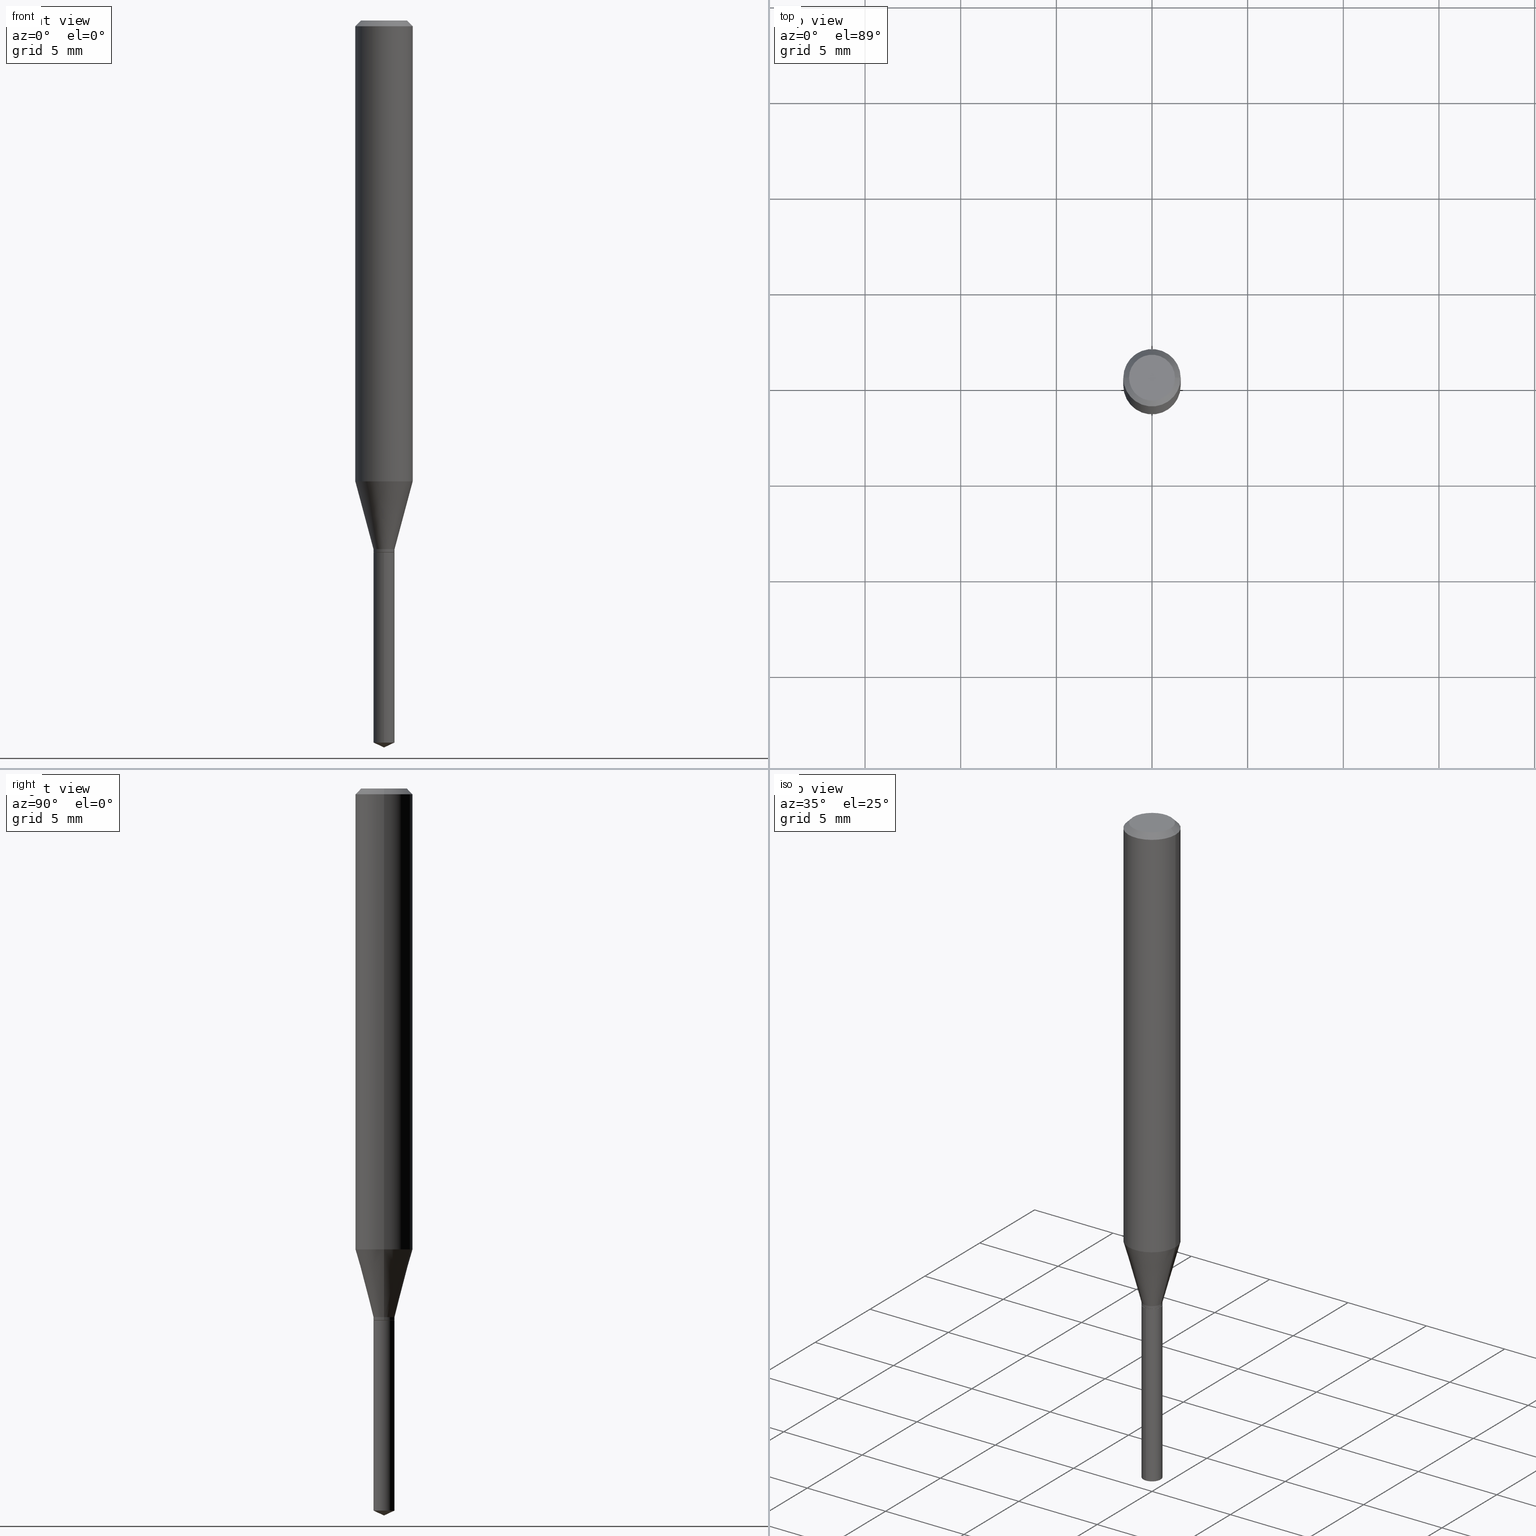
[diagram: canonical four-view strip — front | top / right | iso, engineering-drawing reading convention]
A machine part, canonical four-view strip (front | top / right | iso — engineering-drawing reading convention). The complete STEP part file that produces these views, byte-faithful:
ISO-10303-21;
HEADER;
FILE_DESCRIPTION (( 'STEP AP203' ),
    '1' );
FILE_NAME ('08150.STEP',
    '2024-04-24T13:11:09',
    ( '' ),
    ( '' ),
    'SwSTEP 2.0',
    'SolidWorks 2023',
    '' );
FILE_SCHEMA (( 'CONFIG_CONTROL_DESIGN' ));
ENDSEC;

DATA;
#1 = DIRECTION ( 'NONE',  ( -1.000000000000000000, 6.982962677686265922E-15, 0.000000000000000000 ) ) ;
#2 = CC_DESIGN_APPROVAL ( #64, ( #118 ) ) ;
#3 = CARTESIAN_POINT ( 'NONE',  ( 3.658567025404975087E-29, -5.223746797786701947E-15, -1.496099999999999985 ) ) ;
#4 = CARTESIAN_POINT ( 'NONE',  ( 3.633951633074026465E-29, -5.188393814565889832E-15, -1.486004439200944605 ) ) ;
#5 = FACE_OUTER_BOUND ( 'NONE', #470, .T. ) ;
#6 = EDGE_CURVE ( 'NONE', #31, #26, #181, .T. ) ;
#7 =( NAMED_UNIT ( * ) PLANE_ANGLE_UNIT ( ) SI_UNIT ( $, .RADIAN. ) );
#8 = DATE_AND_TIME ( #471, #299 ) ;
#9 = CLOSED_SHELL ( 'NONE', ( #61, #383, #300, #171, #136 ) ) ;
#10 = AXIS2_PLACEMENT_3D ( 'NONE', #374, #338, #1 ) ;
#11 = PERSON_AND_ORGANIZATION_ROLE ( 'creator' ) ;
#12 = DIRECTION ( 'NONE',  ( -6.982962677686265922E-15, -1.000000000000000000, 6.309117768277745325E-15 ) ) ;
#13 = EDGE_LOOP ( 'NONE', ( #478, #353, #334, #166 ) ) ;
#14 = APPROVAL_DATE_TIME ( #316, #64 ) ;
#15 = DIRECTION ( 'NONE',  ( 2.445402730703145099E-29, -3.491575962694140016E-15, -1.000000000000000000 ) ) ;
#16 = EDGE_CURVE ( 'NONE', #174, #217, #344, .T. ) ;
#17 = PERSON_AND_ORGANIZATION_ROLE ( 'creator' ) ;
#18 = FACE_OUTER_BOUND ( 'NONE', #331, .T. ) ;
#19 = CIRCLE ( 'NONE', #270, 0.02114999999999999172 ) ;
#20 = ORIENTED_EDGE ( 'NONE', *, *, #153, .T. ) ;
#21 = CYLINDRICAL_SURFACE ( 'NONE', #479, 0.02164999999999996788 ) ;
#22 = ADVANCED_FACE ( 'NONE', ( #5 ), #109, .T. ) ;
#23 = CARTESIAN_POINT ( 'NONE',  ( 8.265746106709734507E-48, -1.180129479067563789E-33, -3.380025165646692144E-19 ) ) ;
#24 = VERTEX_POINT ( 'NONE', #46 ) ;
#25 = CARTESIAN_POINT ( 'NONE',  ( 2.660670061129428738E-29, -3.798731696661342438E-15, -1.088000000000000078 ) ) ;
#26 = VERTEX_POINT ( 'NONE', #220 ) ;
#27 = VECTOR ( 'NONE', #144, 39.37007874015748854 ) ;
#28 = LOCAL_TIME ( 9, 11, 9.000000000000000000, #172 ) ;
#29 = CARTESIAN_POINT ( 'NONE',  ( -9.261705871415894043E-28, 1.322399773465276608E-13, 37.87397874015748300 ) ) ;
#30 = CARTESIAN_POINT ( 'NONE',  ( 1.538325022920883819E-16, 0.02164999999999617578, -1.094500000000000028 ) ) ;
#31 = VERTEX_POINT ( 'NONE', #3 ) ;
#32 = DIRECTION ( 'NONE',  ( -2.445402730703145379E-29, 3.491575962694140016E-15, 1.000000000000000000 ) ) ;
#33 = EDGE_LOOP ( 'NONE', ( #392, #323 ) ) ;
#34 = APPLICATION_CONTEXT ( 'configuration controlled 3d designs of mechanical parts and assemblies' ) ;
#35 = AXIS2_PLACEMENT_3D ( 'NONE', #23, #423, #162 ) ;
#36 = AXIS2_PLACEMENT_3D ( 'NONE', #401, #32, #332 ) ;
#37 = DIRECTION ( 'NONE',  ( 1.000000000000000000, -6.982962677686269077E-15, 0.000000000000000000 ) ) ;
#38 = ORIENTED_EDGE ( 'NONE', *, *, #100, .F. ) ;
#39 = PRODUCT ( '08150', '08150', '', ( #417 ) ) ;
#40 = CARTESIAN_POINT ( 'NONE',  ( -0.02164999999999996788, 1.538325022920614620E-16, -1.064949447040185625E-30 ) ) ;
#41 = CARTESIAN_POINT ( 'NONE',  ( 2.676565608369631794E-29, -3.821426325363822773E-15, -1.094499999999999806 ) ) ;
#42 = DIRECTION ( 'NONE',  ( 1.000000000000000000, -6.982962677686277755E-15, 0.000000000000000000 ) ) ;
#43 = VECTOR ( 'NONE', #233, 39.37007874015748143 ) ;
#44 = CIRCLE ( 'NONE', #347, 0.02114999999999999172 ) ;
#45 =( LENGTH_UNIT ( ) NAMED_UNIT ( * ) SI_UNIT ( $, .METRE. ) );
#46 = CARTESIAN_POINT ( 'NONE',  ( 0.02114999999999999172, -3.969115985996887497E-15, -1.094500000000000028 ) ) ;
#47 = SECURITY_CLASSIFICATION_LEVEL ( 'unclassified' ) ;
#48 = EDGE_CURVE ( 'NONE', #328, #473, #186, .T. ) ;
#49 = AXIS2_PLACEMENT_3D ( 'NONE', #465, #352, #425 ) ;
#50 = CALENDAR_DATE ( 2024, 24, 4 ) ;
#51 = LINE ( 'NONE', #312, #89 ) ;
#52 = VECTOR ( 'NONE', #182, 39.37007874015748143 ) ;
#53 = DIRECTION ( 'NONE',  ( -6.982962677686265922E-15, -1.000000000000000000, 6.309117768277745325E-15 ) ) ;
#54 = VERTEX_POINT ( 'NONE', #456 ) ;
#55 = CARTESIAN_POINT ( 'NONE',  ( 2.676565608369631794E-29, -3.821426325363822773E-15, -1.094499999999999806 ) ) ;
#56 = ORIENTED_EDGE ( 'NONE', *, *, #84, .F. ) ;
#57 = PERSON_AND_ORGANIZATION_ROLE ( 'classification_officer' ) ;
#58 = CARTESIAN_POINT ( 'NONE',  ( -0.02164999999999997135, -3.655373638385810145E-15, -1.088000000000000078 ) ) ;
#59 = AXIS2_PLACEMENT_3D ( 'NONE', #317, #463, #265 ) ;
#60 = CONICAL_SURFACE ( 'NONE', #10, 0.05905000000000000526, 0.7853981633974453924 ) ;
#61 = ADVANCED_FACE ( 'NONE', ( #222 ), #304, .T. ) ;
#62 = CARTESIAN_POINT ( 'NONE',  ( 0.02164999999999997135, -3.949912838633250169E-15, -1.088000000000000078 ) ) ;
#63 = EDGE_LOOP ( 'NONE', ( #247, #287, #466, #439 ) ) ;
#64 = APPROVAL ( #276, 'UNSPECIFIED' ) ;
#65 = FACE_OUTER_BOUND ( 'NONE', #72, .T. ) ;
#66 = ORIENTED_EDGE ( 'NONE', *, *, #390, .T. ) ;
#67 = EDGE_CURVE ( 'NONE', #94, #310, #51, .T. ) ;
#68 = DIRECTION ( 'NONE',  ( -2.445468806185136597E-29, 3.491481338843145583E-15, 1.000000000000000000 ) ) ;
#69 = AXIS2_PLACEMENT_3D ( 'NONE', #391, #175, #87 ) ;
#70 = ADVANCED_FACE ( 'NONE', ( #91 ), #123, .T. ) ;
#71 = DIRECTION ( 'NONE',  ( -6.982962677686266711E-15, -1.000000000000000000, 3.520397390770310692E-15 ) ) ;
#72 = EDGE_LOOP ( 'NONE', ( #449, #170 ) ) ;
#73 = DIRECTION ( 'NONE',  ( -2.445468806185136597E-29, 3.491481338843145583E-15, 1.000000000000000000 ) ) ;
#74 = DIRECTION ( 'NONE',  ( 1.000000000000000000, -6.982962677686277755E-15, 0.000000000000000000 ) ) ;
#75 = CONICAL_SURFACE ( 'NONE', #49, 0.05905000000000000526, 0.7853981633974453924 ) ;
#76 = APPROVAL_PERSON_ORGANIZATION ( #168, #454, #196 ) ;
#77 = PERSON_AND_ORGANIZATION_ROLE ( 'design_owner' ) ;
#78 = DIRECTION ( 'NONE',  ( -2.445468806185136597E-29, 3.491481338843145583E-15, 1.000000000000000000 ) ) ;
#79 = CC_DESIGN_PERSON_AND_ORGANIZATION_ASSIGNMENT ( #273, #86, ( #118 ) ) ;
#80 = LINE ( 'NONE', #453, #218 ) ;
#81 = DIRECTION ( 'NONE',  ( 1.000000000000000000, -6.982962677686265922E-15, 4.876176775795935793E-29 ) ) ;
#82 = CC_DESIGN_APPROVAL ( #454, ( #130 ) ) ;
#83 = CARTESIAN_POINT ( 'NONE',  ( -2.259394599611891373E-29, -1.089000228060149958E-14, -1.094500000000000028 ) ) ;
#84 = EDGE_CURVE ( 'NONE', #104, #363, #98, .T. ) ;
#85 = DIRECTION ( 'NONE',  ( -2.445402730703145379E-29, 3.491575962694140016E-15, 1.000000000000000000 ) ) ;
#86 = PERSON_AND_ORGANIZATION_ROLE ( 'design_supplier' ) ;
#87 = DIRECTION ( 'NONE',  ( -6.982962677686265922E-15, -1.000000000000000000, 6.309117768277745325E-15 ) ) ;
#88 = APPROVAL ( #464, 'UNSPECIFIED' ) ;
#89 = VECTOR ( 'NONE', #359, 39.37007874015748143 ) ;
#90 = CC_DESIGN_APPROVAL ( #88, ( #340 ) ) ;
#91 = FACE_OUTER_BOUND ( 'NONE', #13, .T. ) ;
#92 = ORIENTED_EDGE ( 'NONE', *, *, #67, .F. ) ;
#93 = CARTESIAN_POINT ( 'NONE',  ( 0.02114999999999999172, -3.969115985996887497E-15, -1.094500000000000028 ) ) ;
#94 = VERTEX_POINT ( 'NONE', #197 ) ;
#95 = DATE_AND_TIME ( #235, #315 ) ;
#96 = LINE ( 'NONE', #93, #376 ) ;
#97 = PERSON_AND_ORGANIZATION ( #258, #378 ) ;
#98 = LINE ( 'NONE', #122, #254 ) ;
#99 = AXIS2_PLACEMENT_3D ( 'NONE', #41, #192, #155 ) ;
#100 = EDGE_CURVE ( 'NONE', #104, #189, #279, .T. ) ;
#101 = AXIS2_PLACEMENT_3D ( 'NONE', #113, #477, #141 ) ;
#102 = EDGE_LOOP ( 'NONE', ( #115, #163, #234, #475 ) ) ;
#103 = CARTESIAN_POINT ( 'NONE',  ( 2.675342873966538993E-29, -3.819680584694400481E-15, -1.093999999999999861 ) ) ;
#104 = VERTEX_POINT ( 'NONE', #62 ) ;
#105 = ADVANCED_FACE ( 'NONE', ( #431 ), #75, .T. ) ;
#106 = DIRECTION ( 'NONE',  ( 1.000000000000000000, -6.982962677686269077E-15, 0.000000000000000000 ) ) ;
#107 = ADVANCED_FACE ( 'NONE', ( #239 ), #434, .T. ) ;
#108 = CARTESIAN_POINT ( 'NONE',  ( 2.888098660104664642E-31, -4.123439461173780879E-17, -0.01181000000000007565 ) ) ;
#109 = CONICAL_SURFACE ( 'NONE', #364, 0.02164999999999997135, 0.2617993877991497964 ) ;
#110 = AXIS2_PLACEMENT_3D ( 'NONE', #286, #368, #438 ) ;
#111 = DIRECTION ( 'NONE',  ( -2.445468806185136597E-29, 3.491481338843145583E-15, 1.000000000000000000 ) ) ;
#112 = EDGE_LOOP ( 'NONE', ( #400, #297, #129 ) ) ;
#113 = CARTESIAN_POINT ( 'NONE',  ( 2.319334703774938561E-29, -3.311395269602319629E-15, -0.9484212997969236891 ) ) ;
#114 = EDGE_CURVE ( 'NONE', #293, #94, #288, .T. ) ;
#115 = ORIENTED_EDGE ( 'NONE', *, *, #429, .F. ) ;
#116 =( CONVERSION_BASED_UNIT ( 'INCH', #335 ) LENGTH_UNIT ( ) NAMED_UNIT ( #177 ) );
#117 = AXIS2_PLACEMENT_3D ( 'NONE', #149, #219, #263 ) ;
#118 = PRODUCT_DEFINITION_FORMATION_WITH_SPECIFIED_SOURCE ( 'ANY', '', #39, .NOT_KNOWN. ) ;
#119 = DIRECTION ( 'NONE',  ( 1.000000000000000000, -6.982962677686268288E-15, 0.000000000000000000 ) ) ;
#120 = AXIS2_PLACEMENT_3D ( 'NONE', #55, #350, #53 ) ;
#121 =( NAMED_UNIT ( * ) SI_UNIT ( $, .STERADIAN. ) SOLID_ANGLE_UNIT ( ) );
#122 = CARTESIAN_POINT ( 'NONE',  ( 0.02164999999999997135, -3.949912838633250169E-15, -1.088000000000000078 ) ) ;
#123 = CYLINDRICAL_SURFACE ( 'NONE', #244, 0.05905000000000005383 ) ;
#124 = APPROVAL_ROLE ( '' ) ;
#125 = CARTESIAN_POINT ( 'NONE',  ( 2.676565608369632355E-29, -3.821426325363822773E-15, -1.094500000000000028 ) ) ;
#126 = ORIENTED_EDGE ( 'NONE', *, *, #48, .F. ) ;
#127 = DATE_AND_TIME ( #50, #396 ) ;
#128 = DIRECTION ( 'NONE',  ( -2.445468806185136597E-29, 3.491481338843145583E-15, 1.000000000000000000 ) ) ;
#129 = ORIENTED_EDGE ( 'NONE', *, *, #303, .F. ) ;
#130 = PRODUCT_DEFINITION ( 'UNKNOWN', '', #118, #151 ) ;
#131 = APPLICATION_PROTOCOL_DEFINITION ( 'international standard', 'config_control_design', 1994, #194 ) ;
#132 = CARTESIAN_POINT ( 'NONE',  ( 1.538325022920979468E-16, 0.02164999999999480187, -1.486004439200944605 ) ) ;
#133 = ORIENTED_EDGE ( 'NONE', *, *, #459, .T. ) ;
#134 = FACE_OUTER_BOUND ( 'NONE', #102, .T. ) ;
#135 = AXIS2_PLACEMENT_3D ( 'NONE', #25, #73, #74 ) ;
#136 = ADVANCED_FACE ( 'NONE', ( #18 ), #231, .F. ) ;
#137 = CONICAL_SURFACE ( 'NONE', #36, 84.42940631927777417, 1.134464013796331550 ) ;
#138 = ORIENTED_EDGE ( 'NONE', *, *, #476, .F. ) ;
#139 = DIRECTION ( 'NONE',  ( 1.000000000000000000, -6.982962677686266711E-15, 4.876176775795935793E-29 ) ) ;
#140 = ORIENTED_EDGE ( 'NONE', *, *, #487, .F. ) ;
#141 = DIRECTION ( 'NONE',  ( 1.000000000000000000, -6.982962677686268288E-15, 0.000000000000000000 ) ) ;
#142 = VERTEX_POINT ( 'NONE', #357 ) ;
#143 = CARTESIAN_POINT ( 'NONE',  ( 2.676565608369632355E-29, -3.821426325363822773E-15, -1.094500000000000028 ) ) ;
#144 = DIRECTION ( 'NONE',  ( -6.328713451373419077E-15, -0.9063077870366557098, 0.4226182617406868403 ) ) ;
#145 = AXIS2_PLACEMENT_3D ( 'NONE', #381, #188, #119 ) ;
#146 = EDGE_CURVE ( 'NONE', #174, #24, #19, .T. ) ;
#147 = CARTESIAN_POINT ( 'NONE',  ( 0.05905000000000010241, -3.723739215719694549E-15, -0.9484212997969236891 ) ) ;
#148 = EDGE_CURVE ( 'NONE', #54, #104, #227, .T. ) ;
#149 = CARTESIAN_POINT ( 'NONE',  ( 8.265746106709734507E-48, -1.180129479067563789E-33, -3.380025165646692144E-19 ) ) ;
#150 = VERTEX_POINT ( 'NONE', #428 ) ;
#151 = DESIGN_CONTEXT ( 'detailed design', #194, 'design' ) ;
#152 = DIRECTION ( 'NONE',  ( -0.2588190451025211281, 5.211531920934548675E-15, 0.9659258262890682012 ) ) ;
#153 = EDGE_CURVE ( 'NONE', #24, #54, #96, .T. ) ;
#154 = DIRECTION ( 'NONE',  ( 1.000000000000000000, -6.982962677686278543E-15, 0.000000000000000000 ) ) ;
#155 = DIRECTION ( 'NONE',  ( -6.982962677686265922E-15, -1.000000000000000000, 6.309117768277745325E-15 ) ) ;
#156 = DIRECTION ( 'NONE',  ( 1.000000000000000000, -6.982962677686277755E-15, 0.000000000000000000 ) ) ;
#157 = CIRCLE ( 'NONE', #436, 0.05905000000000000526 ) ;
#158 = CONICAL_SURFACE ( 'NONE', #262, 0.02114999999999999172, 0.7853981633972519916 ) ;
#159 = EDGE_CURVE ( 'NONE', #473, #328, #346, .T. ) ;
#160 = DATE_TIME_ROLE ( 'classification_date' ) ;
#161 = CC_DESIGN_PERSON_AND_ORGANIZATION_ASSIGNMENT ( #198, #17, ( #130 ) ) ;
#162 = DIRECTION ( 'NONE',  ( 1.000000000000000000, -6.982962677686266711E-15, 4.876185090822587894E-29 ) ) ;
#163 = ORIENTED_EDGE ( 'NONE', *, *, #476, .T. ) ;
#164 = APPROVAL_DATE_TIME ( #351, #454 ) ;
#165 = DIRECTION ( 'NONE',  ( 6.982962677686265922E-15, 1.000000000000000000, -3.491575962694140016E-15 ) ) ;
#166 = ORIENTED_EDGE ( 'NONE', *, *, #395, .F. ) ;
#167 = VECTOR ( 'NONE', #342, 39.37007874015748143 ) ;
#168 = PERSON_AND_ORGANIZATION ( #258, #378 ) ;
#169 = CARTESIAN_POINT ( 'NONE',  ( 0.02164999999999996788, -1.511811419719074599E-16, 1.055692271959818387E-30 ) ) ;
#170 = ORIENTED_EDGE ( 'NONE', *, *, #408, .T. ) ;
#171 = ADVANCED_FACE ( 'NONE', ( #384 ), #468, .T. ) ;
#172 = COORDINATED_UNIVERSAL_TIME_OFFSET ( 5, 0, .BEHIND. ) ;
#173 = CARTESIAN_POINT ( 'NONE',  ( 0.000000000000000000, 0.000000000000000000, 0.000000000000000000 ) ) ;
#174 = VERTEX_POINT ( 'NONE', #278 ) ;
#175 = DIRECTION ( 'NONE',  ( -2.445402730703145379E-29, 3.491575962694140016E-15, 1.000000000000000000 ) ) ;
#176 = EDGE_LOOP ( 'NONE', ( #284, #269, #20, #275 ) ) ;
#177 = DIMENSIONAL_EXPONENTS ( 1.000000000000000000, 0.000000000000000000, 0.000000000000000000, 0.000000000000000000, 0.000000000000000000, 0.000000000000000000, 0.000000000000000000 ) ;
#178 = CC_DESIGN_PERSON_AND_ORGANIZATION_ASSIGNMENT ( #420, #77, ( #39 ) ) ;
#179 = FACE_OUTER_BOUND ( 'NONE', #176, .T. ) ;
#180 = DIRECTION ( 'NONE',  ( -2.445468806185136597E-29, 3.491481338843145583E-15, 1.000000000000000000 ) ) ;
#181 = LINE ( 'NONE', #486, #27 ) ;
#182 = DIRECTION ( 'NONE',  ( -0.7071067811865454633, 2.468850131082235367E-15, -0.7071067811865495711 ) ) ;
#183 = ORIENTED_EDGE ( 'NONE', *, *, #395, .T. ) ;
#184 = DIRECTION ( 'NONE',  ( 1.000000000000000000, -6.982962677686268288E-15, 0.000000000000000000 ) ) ;
#185 = ORIENTED_EDGE ( 'NONE', *, *, #387, .T. ) ;
#186 = CIRCLE ( 'NONE', #99, 0.02164999999999999564 ) ;
#187 = EDGE_CURVE ( 'NONE', #310, #150, #157, .T. ) ;
#188 = DIRECTION ( 'NONE',  ( -2.445468806185136597E-29, 3.491481338843145583E-15, 1.000000000000000000 ) ) ;
#189 = VERTEX_POINT ( 'NONE', #58 ) ;
#190 = ADVANCED_FACE ( 'NONE', ( #203 ), #21, .T. ) ;
#191 = CARTESIAN_POINT ( 'NONE',  ( -1.511811419718808852E-16, -0.02165000000000381897, -1.094499999999999806 ) ) ;
#192 = DIRECTION ( 'NONE',  ( -2.445402730703145379E-29, 3.491575962694140016E-15, 1.000000000000000000 ) ) ;
#193 = VECTOR ( 'NONE', #85, 39.37007874015748143 ) ;
#194 = APPLICATION_CONTEXT ( 'configuration controlled 3d designs of mechanical parts and assemblies' ) ;
#195 = PERSON_AND_ORGANIZATION ( #258, #378 ) ;
#196 = APPROVAL_ROLE ( '' ) ;
#197 = CARTESIAN_POINT ( 'NONE',  ( 0.04724000000000000421, -3.852183633974369838E-16, -3.380025165621689721E-19 ) ) ;
#198 = PERSON_AND_ORGANIZATION ( #258, #378 ) ;
#199 = DIRECTION ( 'NONE',  ( 0.2588190451025211281, 1.565188264969623940E-15, 0.9659258262890682012 ) ) ;
#200 = CARTESIAN_POINT ( 'NONE',  ( 2.676565608369631794E-29, -3.821426325363822773E-15, -1.094499999999999806 ) ) ;
#201 = COORDINATED_UNIVERSAL_TIME_OFFSET ( 5, 0, .BEHIND. ) ;
#202 = CIRCLE ( 'NONE', #404, 0.02164999999999999564 ) ;
#203 = FACE_OUTER_BOUND ( 'NONE', #482, .T. ) ;
#204 = EDGE_LOOP ( 'NONE', ( #92, #251, #185, #343 ) ) ;
#205 = DIRECTION ( 'NONE',  ( -2.445468806185136597E-29, 3.491481338843145583E-15, 1.000000000000000000 ) ) ;
#206 = VERTEX_POINT ( 'NONE', #132 ) ;
#207 = FACE_OUTER_BOUND ( 'NONE', #214, .T. ) ;
#208 = ORIENTED_EDGE ( 'NONE', *, *, #6, .F. ) ;
#209 = CC_DESIGN_PERSON_AND_ORGANIZATION_ASSIGNMENT ( #195, #11, ( #118 ) ) ;
#210 = FACE_OUTER_BOUND ( 'NONE', #313, .T. ) ;
#211 = AXIS2_PLACEMENT_3D ( 'NONE', #301, #448, #42 ) ;
#212 = ORIENTED_EDGE ( 'NONE', *, *, #266, .F. ) ;
#213 = LINE ( 'NONE', #241, #52 ) ;
#214 = EDGE_LOOP ( 'NONE', ( #212, #321, #183, #402 ) ) ;
#215 = DIRECTION ( 'NONE',  ( -2.445402730703145379E-29, 3.491575962694140016E-15, 1.000000000000000000 ) ) ;
#216 = DIRECTION ( 'NONE',  ( 6.439704144417076107E-15, 0.9063077870366588185, 0.4226182617406806230 ) ) ;
#217 = VERTEX_POINT ( 'NONE', #249 ) ;
#218 = VECTOR ( 'NONE', #257, 39.37007874015748143 ) ;
#219 = DIRECTION ( 'NONE',  ( -2.445468806185136597E-29, 3.491481338843145583E-15, 1.000000000000000000 ) ) ;
#220 = CARTESIAN_POINT ( 'NONE',  ( -1.511811419718712709E-16, -0.02165000000000518246, -1.486004439200944605 ) ) ;
#221 = FACE_OUTER_BOUND ( 'NONE', #204, .T. ) ;
#222 = FACE_OUTER_BOUND ( 'NONE', #406, .T. ) ;
#223 = DIRECTION ( 'NONE',  ( -2.445402730703145379E-29, 3.491575962694140016E-15, 1.000000000000000000 ) ) ;
#224 = ADVANCED_FACE ( 'NONE', ( #134 ), #253, .T. ) ;
#225 = LINE ( 'NONE', #457, #413 ) ;
#226 = CC_DESIGN_DATE_AND_TIME_ASSIGNMENT ( #8, #160, ( #340 ) ) ;
#227 = LINE ( 'NONE', #169, #43 ) ;
#228 = AXIS2_PLACEMENT_3D ( 'NONE', #143, #180, #362 ) ;
#229 = AXIS2_PLACEMENT_3D ( 'NONE', #108, #68, #184 ) ;
#230 = APPROVAL_STATUS ( 'not_yet_approved' ) ;
#231 = PLANE ( 'NONE',  #451 ) ;
#232 = EDGE_LOOP ( 'NONE', ( #411, #379, #367, #126 ) ) ;
#233 = DIRECTION ( 'NONE',  ( -2.445468806185136877E-29, 3.491481338843145188E-15, 1.000000000000000000 ) ) ;
#234 = ORIENTED_EDGE ( 'NONE', *, *, #84, .T. ) ;
#235 = CALENDAR_DATE ( 2024, 24, 4 ) ;
#236 = CARTESIAN_POINT ( 'NONE',  ( 0.000000000000000000, 0.000000000000000000, 0.000000000000000000 ) ) ;
#237 = AXIS2_PLACEMENT_3D ( 'NONE', #458, #261, #12 ) ;
#238 = AXIS2_PLACEMENT_3D ( 'NONE', #29, #366, #71 ) ;
#239 = FACE_OUTER_BOUND ( 'NONE', #389, .T. ) ;
#240 = ORIENTED_EDGE ( 'NONE', *, *, #256, .T. ) ;
#241 = CARTESIAN_POINT ( 'NONE',  ( -0.05905000000000000526, 3.711095515056362547E-16, -0.01181000000000007565 ) ) ;
#242 = ADVANCED_FACE ( 'NONE', ( #65 ), #399, .F. ) ;
#243 = DIRECTION ( 'NONE',  ( 2.438088387897960049E-29, -3.491481338843145188E-15, -1.000000000000000000 ) ) ;
#244 = AXIS2_PLACEMENT_3D ( 'NONE', #236, #309, #268 ) ;
#245 = DIRECTION ( 'NONE',  ( -2.445468806185136597E-29, 3.491481338843145583E-15, 1.000000000000000000 ) ) ;
#246 = CIRCLE ( 'NONE', #437, 0.02164999999999996788 ) ;
#247 = ORIENTED_EDGE ( 'NONE', *, *, #308, .T. ) ;
#248 = ADVANCED_FACE ( 'NONE', ( #179 ), #339, .T. ) ;
#249 = CARTESIAN_POINT ( 'NONE',  ( -0.02164999999999996788, -3.655373638385810145E-15, -1.093999999999999861 ) ) ;
#250 = DIRECTION ( 'NONE',  ( 1.000000000000000000, -6.982962677686278543E-15, 0.000000000000000000 ) ) ;
#251 = ORIENTED_EDGE ( 'NONE', *, *, #114, .F. ) ;
#252 = FACE_OUTER_BOUND ( 'NONE', #33, .T. ) ;
#253 = CONICAL_SURFACE ( 'NONE', #135, 0.02164999999999997135, 0.2617993877991497964 ) ;
#254 = VECTOR ( 'NONE', #199, 39.37007874015748143 ) ;
#255 = AXIS2_PLACEMENT_3D ( 'NONE', #83, #460, #81 ) ;
#256 = EDGE_CURVE ( 'NONE', #206, #328, #483, .T. ) ;
#257 = DIRECTION ( 'NONE',  ( -2.445468806185136877E-29, 3.491481338843145188E-15, 1.000000000000000000 ) ) ;
#258 = PERSON ( 'UNSPECIFIED', 'UNSPECIFIED', 'UNSPECIFIED', ('UNSPECIFIED'), ('UNSPECIFIED'), ('UNSPECIFIED') ) ;
#259 = CARTESIAN_POINT ( 'NONE',  ( -1.511811419718808852E-16, -0.02165000000000381897, -1.094499999999999806 ) ) ;
#260 = PLANE ( 'NONE',  #255 ) ;
#261 = DIRECTION ( 'NONE',  ( -2.445402730703145379E-29, 3.491575962694140016E-15, 1.000000000000000000 ) ) ;
#262 = AXIS2_PLACEMENT_3D ( 'NONE', #292, #245, #37 ) ;
#263 = DIRECTION ( 'NONE',  ( 1.000000000000000000, -6.982962677686266711E-15, 4.876185090822587894E-29 ) ) ;
#264 = APPROVAL_ROLE ( '' ) ;
#265 = DIRECTION ( 'NONE',  ( 1.000000000000000000, -6.982962677686267499E-15, 4.876176775795935232E-29 ) ) ;
#266 = EDGE_CURVE ( 'NONE', #142, #150, #329, .T. ) ;
#267 = COORDINATED_UNIVERSAL_TIME_OFFSET ( 5, 0, .BEHIND. ) ;
#268 = DIRECTION ( 'NONE',  ( 1.000000000000000000, -6.982962677686266711E-15, 4.876176775795935793E-29 ) ) ;
#269 = ORIENTED_EDGE ( 'NONE', *, *, #146, .T. ) ;
#270 = AXIS2_PLACEMENT_3D ( 'NONE', #125, #205, #388 ) ;
#271 = VECTOR ( 'NONE', #380, 39.37007874015748143 ) ;
#272 = DIRECTION ( 'NONE',  ( -2.445468806185136597E-29, 3.491481338843145583E-15, 1.000000000000000000 ) ) ;
#273 = PERSON_AND_ORGANIZATION ( #258, #378 ) ;
#274 = DIRECTION ( 'NONE',  ( 1.000000000000000000, -6.982962677686268288E-15, 0.000000000000000000 ) ) ;
#275 = ORIENTED_EDGE ( 'NONE', *, *, #337, .F. ) ;
#276 = APPROVAL_STATUS ( 'not_yet_approved' ) ;
#277 = ADVANCED_FACE ( 'NONE', ( #207 ), #369, .T. ) ;
#278 = CARTESIAN_POINT ( 'NONE',  ( -0.02114999999999999172, -3.668497309576451157E-15, -1.094500000000000028 ) ) ;
#279 = CIRCLE ( 'NONE', #419, 0.02164999999999997135 ) ;
#280 = CIRCLE ( 'NONE', #145, 0.05905000000000010241 ) ;
#281 = LINE ( 'NONE', #410, #403 ) ;
#282 = ORIENTED_EDGE ( 'NONE', *, *, #337, .T. ) ;
#283 = FACE_OUTER_BOUND ( 'NONE', #112, .T. ) ;
#284 = ORIENTED_EDGE ( 'NONE', *, *, #16, .F. ) ;
#285 = MANIFOLD_SOLID_BREP ( 'Body-Move/Copy2[1]', #9 ) ;
#286 = CARTESIAN_POINT ( 'NONE',  ( 3.633951633074026465E-29, -5.188393814565889832E-15, -1.486004439200944605 ) ) ;
#287 = ORIENTED_EDGE ( 'NONE', *, *, #16, .T. ) ;
#288 = CIRCLE ( 'NONE', #35, 0.04724000000000000421 ) ;
#289 = DIRECTION ( 'NONE',  ( -2.445468806185136597E-29, 3.491481338843145583E-15, 1.000000000000000000 ) ) ;
#290 = ADVANCED_BREP_SHAPE_REPRESENTATION ( '08150', ( #285, #294, #480 ), #443 ) ;
#291 = ORIENTED_EDGE ( 'NONE', *, *, #408, .F. ) ;
#292 = CARTESIAN_POINT ( 'NONE',  ( 2.676565608369632355E-29, -3.821426325363822773E-15, -1.094500000000000028 ) ) ;
#293 = VERTEX_POINT ( 'NONE', #481 ) ;
#294 = MANIFOLD_SOLID_BREP ( 'Body-Move/Copy2[2]', #306 ) ;
#295 = UNCERTAINTY_MEASURE_WITH_UNIT (LENGTH_MEASURE( 1.000000000000000082E-05 ), #116, 'distance_accuracy_value', 'NONE');
#296 = EDGE_CURVE ( 'NONE', #31, #206, #281, .T. ) ;
#297 = ORIENTED_EDGE ( 'NONE', *, *, #6, .T. ) ;
#298 = LINE ( 'NONE', #40, #271 ) ;
#299 = LOCAL_TIME ( 9, 11, 9.000000000000000000, #201 ) ;
#300 = ADVANCED_FACE ( 'NONE', ( #283 ), #137, .T. ) ;
#301 = CARTESIAN_POINT ( 'NONE',  ( 2.660670061129428738E-29, -3.798731696661342438E-15, -1.088000000000000078 ) ) ;
#302 = CARTESIAN_POINT ( 'NONE',  ( 2.660670061129428738E-29, -3.798731696661342438E-15, -1.088000000000000078 ) ) ;
#303 = EDGE_CURVE ( 'NONE', #206, #26, #426, .T. ) ;
#304 = CYLINDRICAL_SURFACE ( 'NONE', #237, 0.02164999999999999564 ) ;
#305 = CARTESIAN_POINT ( 'NONE',  ( 0.000000000000000000, 0.000000000000000000, 0.000000000000000000 ) ) ;
#306 = CLOSED_SHELL ( 'NONE', ( #319, #105, #70, #22, #107, #190, #224, #277, #414, #242, #412, #248 ) ) ;
#307 = CIRCLE ( 'NONE', #372, 0.02164999999999996788 ) ;
#308 = EDGE_CURVE ( 'NONE', #24, #174, #44, .T. ) ;
#309 = DIRECTION ( 'NONE',  ( -2.445468806185136597E-29, 3.491481338843145583E-15, 1.000000000000000000 ) ) ;
#310 = VERTEX_POINT ( 'NONE', #407 ) ;
#311 = CALENDAR_DATE ( 2024, 24, 4 ) ;
#312 = CARTESIAN_POINT ( 'NONE',  ( 0.05905000000000000526, -4.463468013801467941E-16, -0.01181000000000007565 ) ) ;
#313 = EDGE_LOOP ( 'NONE', ( #208, #484, #398 ) ) ;
#314 = AXIS2_PLACEMENT_3D ( 'NONE', #489, #330, #139 ) ;
#315 = LOCAL_TIME ( 9, 11, 9.000000000000000000, #430 ) ;
#316 = DATE_AND_TIME ( #467, #28 ) ;
#317 = CARTESIAN_POINT ( 'NONE',  ( 0.000000000000000000, 0.000000000000000000, 0.000000000000000000 ) ) ;
#318 = ORIENTED_EDGE ( 'NONE', *, *, #187, .T. ) ;
#319 = ADVANCED_FACE ( 'NONE', ( #371 ), #158, .T. ) ;
#320 = DIRECTION ( 'NONE',  ( -2.445468806185136597E-29, 3.491481338843145583E-15, 1.000000000000000000 ) ) ;
#321 = ORIENTED_EDGE ( 'NONE', *, *, #377, .T. ) ;
#322 = CARTESIAN_POINT ( 'NONE',  ( 1.538325022920980454E-16, 0.02164999999999617578, -1.094500000000000028 ) ) ;
#323 = ORIENTED_EDGE ( 'NONE', *, *, #146, .F. ) ;
#324 = AXIS2_PLACEMENT_3D ( 'NONE', #405, #243, #442 ) ;
#325 = APPROVAL_PERSON_ORGANIZATION ( #97, #64, #264 ) ;
#326 = CIRCLE ( 'NONE', #117, 0.04724000000000000421 ) ;
#327 = CARTESIAN_POINT ( 'NONE',  ( -0.05905000000000005383, 4.195754854663395423E-16, -2.904631170795524694E-30 ) ) ;
#328 = VERTEX_POINT ( 'NONE', #322 ) ;
#329 = LINE ( 'NONE', #327, #355 ) ;
#330 = DIRECTION ( 'NONE',  ( -2.445468806185136597E-29, 3.491481338843145583E-15, 1.000000000000000000 ) ) ;
#331 = EDGE_LOOP ( 'NONE', ( #445, #435 ) ) ;
#332 = DIRECTION ( 'NONE',  ( -6.982962677686266711E-15, -1.000000000000000000, 3.520397390770310692E-15 ) ) ;
#333 = CIRCLE ( 'NONE', #211, 0.02164999999999997135 ) ;
#334 = ORIENTED_EDGE ( 'NONE', *, *, #187, .F. ) ;
#335 = LENGTH_MEASURE_WITH_UNIT ( LENGTH_MEASURE( 0.02539999999999999897 ), #45 );
#336 = ORIENTED_EDGE ( 'NONE', *, *, #459, .F. ) ;
#337 = EDGE_CURVE ( 'NONE', #217, #54, #307, .T. ) ;
#338 = DIRECTION ( 'NONE',  ( 2.445468806185136597E-29, -3.491481338843145583E-15, -1.000000000000000000 ) ) ;
#339 = CONICAL_SURFACE ( 'NONE', #228, 0.02114999999999999172, 0.7853981633972519916 ) ;
#340 = SECURITY_CLASSIFICATION ( '', '', #47 ) ;
#341 = DIRECTION ( 'NONE',  ( 1.000000000000000000, 0.000000000000000000, 0.000000000000000000 ) ) ;
#342 = DIRECTION ( 'NONE',  ( -0.7071067811864086838, 7.493145998869852445E-15, 0.7071067811866863506 ) ) ;
#343 = ORIENTED_EDGE ( 'NONE', *, *, #361, .T. ) ;
#344 = LINE ( 'NONE', #382, #167 ) ;
#345 = PERSON_AND_ORGANIZATION ( #258, #378 ) ;
#346 = CIRCLE ( 'NONE', #69, 0.02164999999999999564 ) ;
#347 = AXIS2_PLACEMENT_3D ( 'NONE', #440, #111, #106 ) ;
#348 = CC_DESIGN_PERSON_AND_ORGANIZATION_ASSIGNMENT ( #345, #57, ( #340 ) ) ;
#349 = COORDINATED_UNIVERSAL_TIME_OFFSET ( 5, 0, .BEHIND. ) ;
#350 = DIRECTION ( 'NONE',  ( -2.445402730703145379E-29, 3.491575962694140016E-15, 1.000000000000000000 ) ) ;
#351 = DATE_AND_TIME ( #311, #386 ) ;
#352 = DIRECTION ( 'NONE',  ( 2.445468806185136597E-29, -3.491481338843145583E-15, -1.000000000000000000 ) ) ;
#353 = ORIENTED_EDGE ( 'NONE', *, *, #266, .T. ) ;
#354 = DIRECTION ( 'NONE',  ( 1.000000000000000000, -6.982962677686277755E-15, 0.000000000000000000 ) ) ;
#355 = VECTOR ( 'NONE', #444, 39.37007874015748143 ) ;
#356 = SHAPE_DEFINITION_REPRESENTATION ( #416, #290 ) ;
#357 = CARTESIAN_POINT ( 'NONE',  ( -0.05905000000000010241, -2.891819784135979347E-15, -0.9484212997969236891 ) ) ;
#358 = ORIENTED_EDGE ( 'NONE', *, *, #159, .F. ) ;
#359 = DIRECTION ( 'NONE',  ( 0.7071067811865454633, -7.319954787623248157E-15, -0.7071067811865495711 ) ) ;
#360 = ORIENTED_EDGE ( 'NONE', *, *, #421, .F. ) ;
#361 = EDGE_CURVE ( 'NONE', #150, #310, #461, .T. ) ;
#362 = DIRECTION ( 'NONE',  ( 1.000000000000000000, -6.982962677686269077E-15, 0.000000000000000000 ) ) ;
#363 = VERTEX_POINT ( 'NONE', #147 ) ;
#364 = AXIS2_PLACEMENT_3D ( 'NONE', #302, #78, #156 ) ;
#365 = CC_DESIGN_SECURITY_CLASSIFICATION ( #340, ( #118 ) ) ;
#366 = DIRECTION ( 'NONE',  ( -2.445402730703145379E-29, 3.491575962694140016E-15, 1.000000000000000000 ) ) ;
#367 = ORIENTED_EDGE ( 'NONE', *, *, #421, .T. ) ;
#368 = DIRECTION ( 'NONE',  ( -2.445402730703145379E-29, 3.491575962694140016E-15, 1.000000000000000000 ) ) ;
#369 = CYLINDRICAL_SURFACE ( 'NONE', #314, 0.05905000000000005383 ) ;
#370 = ORIENTED_EDGE ( 'NONE', *, *, #148, .T. ) ;
#371 = FACE_OUTER_BOUND ( 'NONE', #63, .T. ) ;
#372 = AXIS2_PLACEMENT_3D ( 'NONE', #103, #446, #250 ) ;
#373 = EDGE_LOOP ( 'NONE', ( #291, #427, #318, #432 ) ) ;
#374 = CARTESIAN_POINT ( 'NONE',  ( 2.888098660104664642E-31, -4.123439461173780879E-17, -0.01181000000000007565 ) ) ;
#375 = DIRECTION ( 'NONE',  ( -6.982962677686265922E-15, -1.000000000000000000, 0.000000000000000000 ) ) ;
#376 = VECTOR ( 'NONE', #394, 39.37007874015748143 ) ;
#377 = EDGE_CURVE ( 'NONE', #142, #363, #452, .T. ) ;
#378 = ORGANIZATION ( 'UNSPECIFIED', 'UNSPECIFIED', '' ) ;
#379 = ORIENTED_EDGE ( 'NONE', *, *, #303, .T. ) ;
#380 = DIRECTION ( 'NONE',  ( -2.445468806185136877E-29, 3.491481338843145188E-15, 1.000000000000000000 ) ) ;
#381 = CARTESIAN_POINT ( 'NONE',  ( 2.319334703774938561E-29, -3.311395269602319629E-15, -0.9484212997969236891 ) ) ;
#382 = CARTESIAN_POINT ( 'NONE',  ( -0.02114999999999999172, -3.671146536750561569E-15, -1.094500000000000028 ) ) ;
#383 = ADVANCED_FACE ( 'NONE', ( #210 ), #488, .T. ) ;
#384 = FACE_OUTER_BOUND ( 'NONE', #232, .T. ) ;
#385 = VECTOR ( 'NONE', #215, 39.37007874015748143 ) ;
#386 = LOCAL_TIME ( 9, 11, 9.000000000000000000, #349 ) ;
#387 = EDGE_CURVE ( 'NONE', #293, #150, #213, .T. ) ;
#388 = DIRECTION ( 'NONE',  ( 1.000000000000000000, -6.982962677686269077E-15, 0.000000000000000000 ) ) ;
#389 = EDGE_LOOP ( 'NONE', ( #66, #133, #38, #447 ) ) ;
#390 = EDGE_CURVE ( 'NONE', #54, #217, #246, .T. ) ;
#391 = CARTESIAN_POINT ( 'NONE',  ( 2.676565608369631794E-29, -3.821426325363822773E-15, -1.094499999999999806 ) ) ;
#392 = ORIENTED_EDGE ( 'NONE', *, *, #308, .F. ) ;
#393 = APPROVAL_DATE_TIME ( #95, #88 ) ;
#394 = DIRECTION ( 'NONE',  ( 0.7071067811864086838, -2.468850131080802401E-15, 0.7071067811866863506 ) ) ;
#395 = EDGE_CURVE ( 'NONE', #363, #310, #80, .T. ) ;
#396 = LOCAL_TIME ( 9, 11, 9.000000000000000000, #267 ) ;
#397 = CARTESIAN_POINT ( 'NONE',  ( 2.660670061129428738E-29, -3.798731696661342438E-15, -1.088000000000000078 ) ) ;
#398 = ORIENTED_EDGE ( 'NONE', *, *, #450, .F. ) ;
#399 = PLANE ( 'NONE',  #324 ) ;
#400 = ORIENTED_EDGE ( 'NONE', *, *, #296, .F. ) ;
#401 = CARTESIAN_POINT ( 'NONE',  ( -9.261705871415894043E-28, 1.322399773465276608E-13, 37.87397874015748300 ) ) ;
#402 = ORIENTED_EDGE ( 'NONE', *, *, #361, .F. ) ;
#403 = VECTOR ( 'NONE', #216, 39.37007874015748854 ) ;
#404 = AXIS2_PLACEMENT_3D ( 'NONE', #4, #223, #375 ) ;
#405 = CARTESIAN_POINT ( 'NONE',  ( 4.132873053354867254E-48, -5.900647395337818946E-34, -1.690012582823346072E-19 ) ) ;
#406 = EDGE_LOOP ( 'NONE', ( #409, #240, #358, #360 ) ) ;
#407 = CARTESIAN_POINT ( 'NONE',  ( 0.05905000000000000526, -4.535783407291119586E-16, -0.01181000000000007565 ) ) ;
#408 = EDGE_CURVE ( 'NONE', #94, #293, #326, .T. ) ;
#409 = ORIENTED_EDGE ( 'NONE', *, *, #450, .T. ) ;
#410 = CARTESIAN_POINT ( 'NONE',  ( 3.658712932950369103E-29, -5.223539666176875291E-15, -1.496099999999999985 ) ) ;
#411 = ORIENTED_EDGE ( 'NONE', *, *, #256, .F. ) ;
#412 = ADVANCED_FACE ( 'NONE', ( #252 ), #260, .F. ) ;
#413 = VECTOR ( 'NONE', #152, 39.37007874015748143 ) ;
#414 = ADVANCED_FACE ( 'NONE', ( #221 ), #60, .T. ) ;
#415 = APPLICATION_PROTOCOL_DEFINITION ( 'international standard', 'config_control_design', 1994, #34 ) ;
#416 = PRODUCT_DEFINITION_SHAPE ( 'NONE', 'NONE',  #130 ) ;
#417 = MECHANICAL_CONTEXT ( 'NONE', #34, 'mechanical' ) ;
#418 = LINE ( 'NONE', #259, #193 ) ;
#419 = AXIS2_PLACEMENT_3D ( 'NONE', #397, #272, #354 ) ;
#420 = PERSON_AND_ORGANIZATION ( #258, #378 ) ;
#421 = EDGE_CURVE ( 'NONE', #26, #473, #418, .T. ) ;
#422 = DATE_TIME_ROLE ( 'creation_date' ) ;
#423 = DIRECTION ( 'NONE',  ( -2.445468806185136597E-29, 3.491481338843145583E-15, 1.000000000000000000 ) ) ;
#424 = CC_DESIGN_DATE_AND_TIME_ASSIGNMENT ( #127, #422, ( #130 ) ) ;
#425 = DIRECTION ( 'NONE',  ( -1.000000000000000000, 6.982962677686265922E-15, 0.000000000000000000 ) ) ;
#426 = CIRCLE ( 'NONE', #110, 0.02164999999999999564 ) ;
#427 = ORIENTED_EDGE ( 'NONE', *, *, #67, .T. ) ;
#428 = CARTESIAN_POINT ( 'NONE',  ( -0.05905000000000000526, -1.256739346640688792E-15, -0.01181000000000007565 ) ) ;
#429 = EDGE_CURVE ( 'NONE', #189, #142, #225, .T. ) ;
#430 = COORDINATED_UNIVERSAL_TIME_OFFSET ( 5, 0, .BEHIND. ) ;
#431 = FACE_OUTER_BOUND ( 'NONE', #373, .T. ) ;
#432 = ORIENTED_EDGE ( 'NONE', *, *, #387, .F. ) ;
#433 = PERSON_AND_ORGANIZATION ( #258, #378 ) ;
#434 = CYLINDRICAL_SURFACE ( 'NONE', #59, 0.02164999999999996788 ) ;
#435 = ORIENTED_EDGE ( 'NONE', *, *, #48, .T. ) ;
#436 = AXIS2_PLACEMENT_3D ( 'NONE', #472, #128, #274 ) ;
#437 = AXIS2_PLACEMENT_3D ( 'NONE', #485, #289, #154 ) ;
#438 = DIRECTION ( 'NONE',  ( -6.982962677686265922E-15, -1.000000000000000000, 0.000000000000000000 ) ) ;
#439 = ORIENTED_EDGE ( 'NONE', *, *, #153, .F. ) ;
#440 = CARTESIAN_POINT ( 'NONE',  ( 2.676565608369632355E-29, -3.821426325363822773E-15, -1.094500000000000028 ) ) ;
#441 = ORIENTED_EDGE ( 'NONE', *, *, #429, .T. ) ;
#442 = DIRECTION ( 'NONE',  ( -1.000000000000000000, 6.982962677686265922E-15, -4.876176775795935793E-29 ) ) ;
#443 =( GEOMETRIC_REPRESENTATION_CONTEXT ( 3 ) GLOBAL_UNCERTAINTY_ASSIGNED_CONTEXT ( ( #295 ) ) GLOBAL_UNIT_ASSIGNED_CONTEXT ( ( #116, #7, #121 ) ) REPRESENTATION_CONTEXT ( 'NONE', 'WORKASPACE' ) );
#444 = DIRECTION ( 'NONE',  ( -2.445468806185136877E-29, 3.491481338843145188E-15, 1.000000000000000000 ) ) ;
#445 = ORIENTED_EDGE ( 'NONE', *, *, #159, .T. ) ;
#446 = DIRECTION ( 'NONE',  ( -2.445468806185136597E-29, 3.491481338843145583E-15, 1.000000000000000000 ) ) ;
#447 = ORIENTED_EDGE ( 'NONE', *, *, #148, .F. ) ;
#448 = DIRECTION ( 'NONE',  ( -2.445468806185136597E-29, 3.491481338843145583E-15, 1.000000000000000000 ) ) ;
#449 = ORIENTED_EDGE ( 'NONE', *, *, #114, .T. ) ;
#450 = EDGE_CURVE ( 'NONE', #26, #206, #202, .T. ) ;
#451 = AXIS2_PLACEMENT_3D ( 'NONE', #200, #15, #165 ) ;
#452 = CIRCLE ( 'NONE', #101, 0.05905000000000010241 ) ;
#453 = CARTESIAN_POINT ( 'NONE',  ( 0.05905000000000005383, -4.123439461173744271E-16, 2.879382386107502672E-30 ) ) ;
#454 = APPROVAL ( #230, 'UNSPECIFIED' ) ;
#455 = DIRECTION ( 'NONE',  ( 0.000000000000000000, 0.000000000000000000, 1.000000000000000000 ) ) ;
#456 = CARTESIAN_POINT ( 'NONE',  ( 0.02164999999999996788, -3.970861726666308212E-15, -1.093999999999999861 ) ) ;
#457 = CARTESIAN_POINT ( 'NONE',  ( -0.02164999999999997135, -3.644899194369281124E-15, -1.088000000000000078 ) ) ;
#458 = CARTESIAN_POINT ( 'NONE',  ( 2.676565608369631794E-29, -3.821426325363822773E-15, -1.094499999999999806 ) ) ;
#459 = EDGE_CURVE ( 'NONE', #217, #189, #298, .T. ) ;
#460 = DIRECTION ( 'NONE',  ( -2.438088387897960049E-29, 3.491481338843145188E-15, 1.000000000000000000 ) ) ;
#461 = CIRCLE ( 'NONE', #229, 0.05905000000000000526 ) ;
#462 = PRODUCT_RELATED_PRODUCT_CATEGORY ( 'detail', '', ( #39 ) ) ;
#463 = DIRECTION ( 'NONE',  ( -2.445468806185136597E-29, 3.491481338843145583E-15, 1.000000000000000000 ) ) ;
#464 = APPROVAL_STATUS ( 'not_yet_approved' ) ;
#465 = CARTESIAN_POINT ( 'NONE',  ( 2.888098660104664642E-31, -4.123439461173780879E-17, -0.01181000000000007565 ) ) ;
#466 = ORIENTED_EDGE ( 'NONE', *, *, #390, .F. ) ;
#467 = CALENDAR_DATE ( 2024, 24, 4 ) ;
#468 = CYLINDRICAL_SURFACE ( 'NONE', #120, 0.02164999999999999564 ) ;
#469 = APPROVAL_PERSON_ORGANIZATION ( #433, #88, #124 ) ;
#470 = EDGE_LOOP ( 'NONE', ( #490, #441, #140, #56 ) ) ;
#471 = CALENDAR_DATE ( 2024, 24, 4 ) ;
#472 = CARTESIAN_POINT ( 'NONE',  ( 2.888098660104664642E-31, -4.123439461173780879E-17, -0.01181000000000007565 ) ) ;
#473 = VERTEX_POINT ( 'NONE', #191 ) ;
#474 = DIRECTION ( 'NONE',  ( 1.000000000000000000, -6.982962677686267499E-15, 4.876176775795935232E-29 ) ) ;
#475 = ORIENTED_EDGE ( 'NONE', *, *, #377, .F. ) ;
#476 = EDGE_CURVE ( 'NONE', #189, #104, #333, .T. ) ;
#477 = DIRECTION ( 'NONE',  ( -2.445468806185136597E-29, 3.491481338843145583E-15, 1.000000000000000000 ) ) ;
#478 = ORIENTED_EDGE ( 'NONE', *, *, #487, .T. ) ;
#479 = AXIS2_PLACEMENT_3D ( 'NONE', #173, #320, #474 ) ;
#480 = AXIS2_PLACEMENT_3D ( 'NONE', #305, #455, #341 ) ;
#481 = CARTESIAN_POINT ( 'NONE',  ( -0.04724000000000000421, 3.504923541997677355E-16, -3.380025165670481712E-19 ) ) ;
#482 = EDGE_LOOP ( 'NONE', ( #336, #282, #370, #138 ) ) ;
#483 = LINE ( 'NONE', #30, #385 ) ;
#484 = ORIENTED_EDGE ( 'NONE', *, *, #296, .T. ) ;
#485 = CARTESIAN_POINT ( 'NONE',  ( 2.675342873966538993E-29, -3.819680584694400481E-15, -1.093999999999999861 ) ) ;
#486 = CARTESIAN_POINT ( 'NONE',  ( 3.658567025404975087E-29, -5.223746797786701947E-15, -1.496099999999999985 ) ) ;
#487 = EDGE_CURVE ( 'NONE', #363, #142, #280, .T. ) ;
#488 = CONICAL_SURFACE ( 'NONE', #238, 84.42940631927777417, 1.134464013796331550 ) ;
#489 = CARTESIAN_POINT ( 'NONE',  ( 0.000000000000000000, 0.000000000000000000, 0.000000000000000000 ) ) ;
#490 = ORIENTED_EDGE ( 'NONE', *, *, #100, .T. ) ;
ENDSEC;
END-ISO-10303-21;
